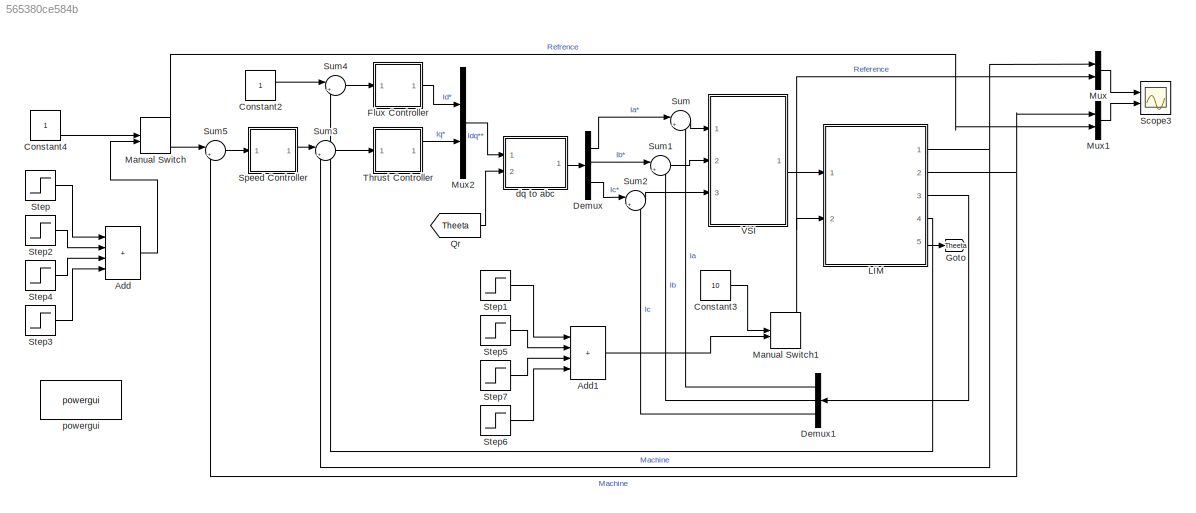
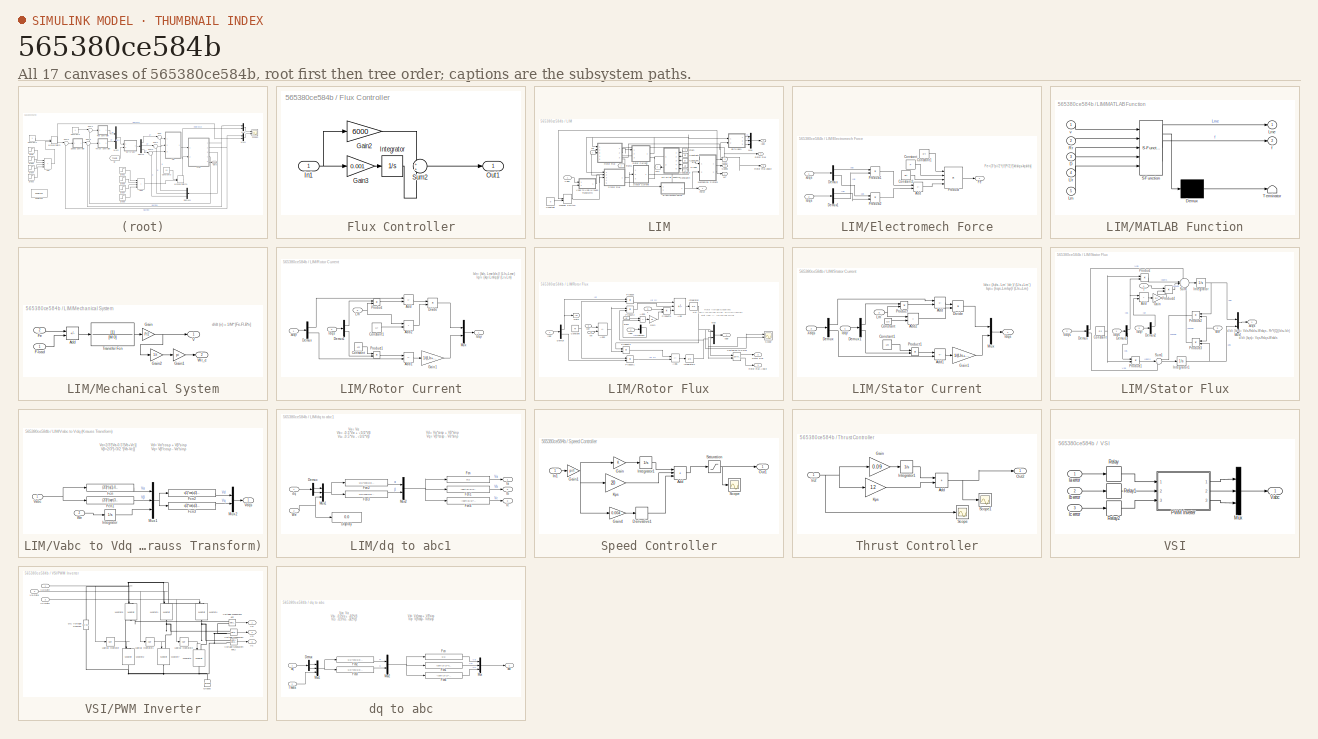
[diagram: thumbnail index - all 17 canvases of the model, root first then tree order]
MODEL slx_565380ce584b
KIND model
CONFIG AbsTol = auto
CONFIG EnableMultiTasking = off
CONFIG FixedStep = auto
CONFIG MaxStep = auto
CONFIG MinStep = auto
CONFIG RelTol = 1e-3
CONFIG SampleTimeConstraint = Unconstrained
CONFIG SolverName = VariableStepAuto
CONFIG StartTime = 0.0
CONFIG StopTime = 3
BLOCK [Sum] Add
  IconShape = rectangular
  Inputs = ++++
  Ports = [4, 1]
BLOCK [Sum] Add1
  IconShape = rectangular
  Inputs = ++++
  Ports = [4, 1]
BLOCK [Constant] Constant2
BLOCK [Constant] Constant3
  Value = 10
BLOCK [Constant] Constant4
BLOCK [Demux] Demux
  Outputs = 3
  Ports = [1, 3]
BLOCK [Demux] Demux1
  NameLocation = top
  Outputs = 3
  Ports = [1, 3]
BLOCK [SubSystem] Flux Controller
  Ports = [1, 1]
  RequestExecContextInheritance = off
BLOCK [Gain] Flux Controller/Gain2
  Gain = 6000
BLOCK [Gain] Flux Controller/Gain3
  Gain = 0.001
BLOCK [Inport] Flux Controller/In1
BLOCK [Integrator] Flux Controller/Integrator
  Ports = [1, 1]
BLOCK [Outport] Flux Controller/Out1
BLOCK [Sum] Flux Controller/Sum2
  Ports = [2, 1]
BLOCK [Goto] Goto
  GotoTag = Theeta
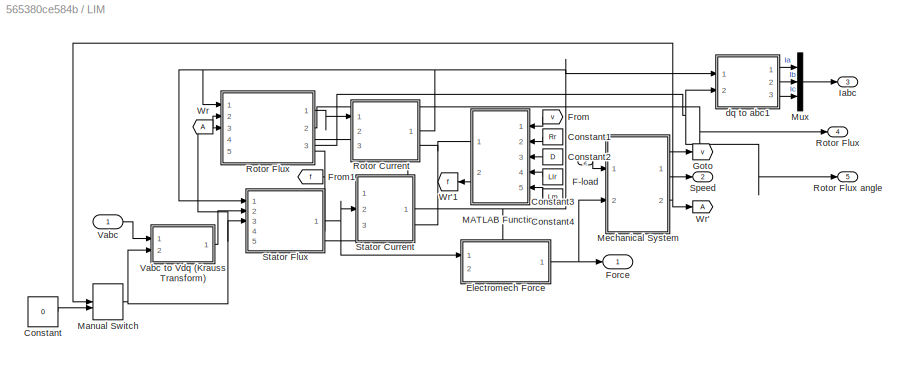
BLOCK [SubSystem] LIM
  Ports = [2, 5]
  RequestExecContextInheritance = off
BLOCK [Outport] LIM/ Iabc
  Port = 3
BLOCK [Outport] LIM/ Rotor Flux
  Port = 4
BLOCK [Outport] LIM/ Rotor Flux angle
  Port = 5
BLOCK [Outport] LIM/ Speed
  Port = 2
BLOCK [Constant] LIM/Constant
  Value = 0
BLOCK [Constant] LIM/Constant1
  NameLocation = top
  Value = Rr
BLOCK [Constant] LIM/Constant2
  NameLocation = top
  Value = D
BLOCK [Constant] LIM/Constant3
  NameLocation = top
  Value = Llr
BLOCK [Constant] LIM/Constant4
  NameLocation = top
  Value = Lm
BLOCK [SubSystem] LIM/Electromech Force
  PortSchema = {"entries":[{"content":{"sides":[{"content":{"connectorIds":["In1"]},"type":"ConnectorPlacement.EquallySpacedRectSide","uuid":"a4b29cca-9cb0-4324-9244-2049ffc93668"},{"content":{"connectorIds":["Out1"],"side":"RIGHT"},"type":"ConnectorPlacement.EquallySpacedRectSide","uuid":"b20ff3ac-d40e-4f59-bb91-f6f2c0c6ca63"},{"content":{"connectorIds":["In2"],"side":"TOP"},"type":"ConnectorPlacement.EquallySp...<+389ch>
  Ports = [2, 1]
  RequestExecContextInheritance = off
BLOCK [Sum] LIM/Electromech Force/Add
  IconShape = rectangular
  Inputs = +-
  Ports = [2, 1]
BLOCK [Constant] LIM/Electromech Force/Constant
  Value = P
BLOCK [Constant] LIM/Electromech Force/Constant1
  Value = 3/4
BLOCK [Constant] LIM/Electromech Force/Constant2
  Value = pi/t
BLOCK [Demux] LIM/Electromech Force/Demux
  Outputs = 2
  Ports = [1, 2]
BLOCK [Demux] LIM/Electromech Force/Demux1
  Outputs = 2
  Ports = [1, 2]
BLOCK [Outport] LIM/Electromech Force/Fe
BLOCK [Inport] LIM/Electromech Force/Idqs
  Port = 2
BLOCK [Product] LIM/Electromech Force/Product
  Inputs = 4
  Ports = [4, 1]
BLOCK [Product] LIM/Electromech Force/Product1
  Ports = [2, 1]
BLOCK [Product] LIM/Electromech Force/Product2
  Ports = [2, 1]
BLOCK [Inport] LIM/Electromech Force/λdqs
BLOCK [Inport] LIM/F-load
  Port = 2
BLOCK [Outport] LIM/Force 
BLOCK [From] LIM/From
  GotoTag = v
  NameLocation = top
BLOCK [From] LIM/From1
  GotoTag = f
BLOCK [Goto] LIM/Goto
  GotoTag = v
BLOCK [SubSystem] LIM/MATLAB Function
  ErrorFcn = Stateflow.Translate.translate
  NameLocation = top
  PermitHierarchicalResolution = ExplicitOnly
  Ports = [5, 2]
  RequestExecContextInheritance = off
  SFBlockType = MATLAB Function
  TreatAsAtomicUnit = on
BLOCK [Demux] LIM/MATLAB Function/ Demux 
  Outputs = 1
  Ports = [1, 1]
BLOCK [S-Function] LIM/MATLAB Function/ SFunction 
  EnableBusSupport = on
  FunctionName = sf_sfun
  PortCounts = [5 3]
  Ports = [5, 3]
  SFcnIsStateOwnerBlock = off
  SFunctionDeploymentMode = off
  Tag = Stateflow S-Function 2
BLOCK [Terminator] LIM/MATLAB Function/ Terminator 
BLOCK [Inport] LIM/MATLAB Function/D
  Port = 3
BLOCK [Inport] LIM/MATLAB Function/Llr
  Port = 4
BLOCK [Inport] LIM/MATLAB Function/Lm
  Port = 5
BLOCK [Outport] LIM/MATLAB Function/Lme
BLOCK [Inport] LIM/MATLAB Function/Rr
  Port = 2
BLOCK [Outport] LIM/MATLAB Function/f
  Port = 2
BLOCK [Inport] LIM/MATLAB Function/v
BLOCK [ManualSwitch] LIM/Manual Switch
  CurrentSetting = 0
BLOCK [SubSystem] LIM/Mechanical System
  Ports = [2, 2]
  RequestExecContextInheritance = off
BLOCK [Sum] LIM/Mechanical System/Add
  IconShape = rectangular
  Inputs = +-
  Ports = [2, 1]
BLOCK [Inport] LIM/Mechanical System/F-load
BLOCK [Inport] LIM/Mechanical System/Fe
  Port = 2
BLOCK [Gain] LIM/Mechanical System/Gain
  Gain = P/2
BLOCK [Gain] LIM/Mechanical System/Gain1
  Gain = pi
BLOCK [Gain] LIM/Mechanical System/Gain2
  Gain = 1/t
BLOCK [TransferFcn] LIM/Mechanical System/Transfer Fcn
  Denominator = [M 0]
BLOCK [Outport] LIM/Mechanical System/V
BLOCK [Outport] LIM/Mechanical System/Wr_e
  Port = 2
BLOCK [Mux] LIM/Mux
  DisplayOption = bar
  Inputs = 3
  Ports = [3, 1]
BLOCK [SubSystem] LIM/Rotor Current
  PortSchema = {"entries":[{"content":{"sides":[{"content":{"connectorIds":["In1","Out1"]},"type":"ConnectorPlacement.EquallySpacedRectSide","uuid":"b9a9f404-9b3b-4182-a50e-1bf7cef191e8"},{"content":{"connectorIds":["In2","In3"],"side":"RIGHT"},"type":"ConnectorPlacement.EquallySpacedRectSide","uuid":"68159d79-7975-4fd0-98a3-7e35432781a2"},{"content":{"connectorIds":[],"side":"TOP"},"type":"ConnectorPlacement.Eq...<+540ch>
  Ports = [3, 1]
  RequestExecContextInheritance = off
BLOCK [Sum] LIM/Rotor Current/Add
  IconShape = rectangular
  Inputs = +-
  Ports = [2, 1]
BLOCK [Sum] LIM/Rotor Current/Add1
  IconShape = rectangular
  Inputs = -+
  Ports = [2, 1]
BLOCK [Sum] LIM/Rotor Current/Add2
  IconShape = rectangular
  Ports = [2, 1]
BLOCK [Constant] LIM/Rotor Current/Constant
  Value = Lm
  VectorParams1D = off
BLOCK [Constant] LIM/Rotor Current/Constant1
  Value = Llr
BLOCK [Demux] LIM/Rotor Current/Demux
  Outputs = 2
  Ports = [1, 2]
BLOCK [Demux] LIM/Rotor Current/Demux1
  Outputs = 2
  Ports = [1, 2]
BLOCK [Product] LIM/Rotor Current/Divide
  Inputs = */
  Ports = [2, 1]
BLOCK [Gain] LIM/Rotor Current/Gain1
  Gain = 1/(Llr+Lm)
BLOCK [Outport] LIM/Rotor Current/Idqr
BLOCK [Inport] LIM/Rotor Current/Idqs
  Port = 2
BLOCK [Inport] LIM/Rotor Current/Lm'
  Port = 3
BLOCK [Mux] LIM/Rotor Current/Mux
  DisplayOption = bar
  Inputs = 2
  Ports = [2, 1]
BLOCK [Product] LIM/Rotor Current/Product
  Ports = [2, 1]
BLOCK [Product] LIM/Rotor Current/Product1
  Ports = [2, 1]
BLOCK [Inport] LIM/Rotor Current/λdqr
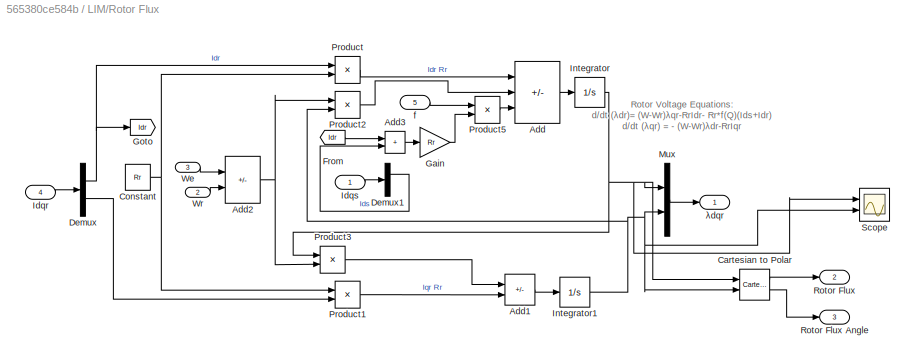
BLOCK [SubSystem] LIM/Rotor Flux
  PortSchema = {"entries":[{"content":{"sides":[{"content":{"connectorIds":["In1","In2","In3"]},"type":"ConnectorPlacement.EquallySpacedRectSide","uuid":"b9a9f404-9b3b-4182-a50e-1bf7cef191e8"},{"content":{"connectorIds":["Out1","Out2","Out3","In4","In5"],"side":"RIGHT"},"type":"ConnectorPlacement.EquallySpacedRectSide","uuid":"68159d79-7975-4fd0-98a3-7e35432781a2"},{"content":{"connectorIds":[],"side":"TOP"},"ty...<+422ch>
  Ports = [5, 3]
  RequestExecContextInheritance = off
BLOCK [Sum] LIM/Rotor Flux/Add
  IconShape = rectangular
  Inputs = -+-
  Ports = [3, 1]
BLOCK [Sum] LIM/Rotor Flux/Add1
  IconShape = rectangular
  Inputs = --
  Ports = [2, 1]
BLOCK [Sum] LIM/Rotor Flux/Add2
  IconShape = rectangular
  Inputs = +-
  Ports = [2, 1]
BLOCK [Sum] LIM/Rotor Flux/Add3
  IconShape = rectangular
  Ports = [2, 1]
BLOCK [Reference] LIM/Rotor Flux/Cartesian to Polar  REF=simulink_extras/Transformations/Cartesian to
Polar
  Ports = [2, 2]
  SourceBlock = simulink_extras/Transformations/Cartesian to\nPolar
  SourceProductBaseCode = SL
  SourceType = Cart2Polar
BLOCK [Constant] LIM/Rotor Flux/Constant
  Value = Rr
BLOCK [Demux] LIM/Rotor Flux/Demux
  Outputs = 2
  Ports = [1, 2]
BLOCK [Demux] LIM/Rotor Flux/Demux1
  Outputs = 2
  Ports = [1, 2]
BLOCK [From] LIM/Rotor Flux/From
  GotoTag = Idr
BLOCK [Gain] LIM/Rotor Flux/Gain
  Gain = Rr
BLOCK [Goto] LIM/Rotor Flux/Goto
  GotoTag = Idr
BLOCK [Inport] LIM/Rotor Flux/Idqr
  Port = 4
BLOCK [Inport] LIM/Rotor Flux/Idqs
BLOCK [Integrator] LIM/Rotor Flux/Integrator
  Ports = [1, 1]
BLOCK [Integrator] LIM/Rotor Flux/Integrator1
  Ports = [1, 1]
BLOCK [Mux] LIM/Rotor Flux/Mux
  DisplayOption = bar
  Inputs = 2
  Ports = [2, 1]
BLOCK [Product] LIM/Rotor Flux/Product
  Ports = [2, 1]
BLOCK [Product] LIM/Rotor Flux/Product1
  Ports = [2, 1]
BLOCK [Product] LIM/Rotor Flux/Product2
  Ports = [2, 1]
BLOCK [Product] LIM/Rotor Flux/Product3
  Ports = [2, 1]
BLOCK [Product] LIM/Rotor Flux/Product5
  Ports = [2, 1]
BLOCK [Outport] LIM/Rotor Flux/Rotor Flux
  Port = 2
BLOCK [Outport] LIM/Rotor Flux/Rotor Flux Angle
  Port = 3
BLOCK [Scope] LIM/Rotor Flux/Scope
  Floating = off
  NumInputPorts = 2
  Ports = [2]
  ScopeSpecificationString = Simulink.scopes.TimeScopeBlockCfg('CurrentConfiguration', extmgr.ConfigurationSet(extmgr.Configuration('Core','General UI',true),extmgr.Configuration('Core','Source UI',true),extmgr.Configuration('Sources','WiredSimulink',true,'DataLoggingVariableName','ScopeData1'),extmgr.Configuration('Visuals','Time Domain',true,'SerializedDisplays',{struct('MinYLimReal','-1.28219','MaxYLimReal','1.45674','YLab...<+2071ch>
BLOCK [Inport] LIM/Rotor Flux/We
  Port = 3
BLOCK [Inport] LIM/Rotor Flux/Wr
  Port = 2
BLOCK [Inport] LIM/Rotor Flux/f
  Port = 5
BLOCK [Outport] LIM/Rotor Flux/λdqr
BLOCK [SubSystem] LIM/Stator Current
  PortSchema = {"entries":[{"content":{"sides":[{"content":{"connectorIds":["In1","In2"]},"type":"ConnectorPlacement.EquallySpacedRectSide","uuid":"c6a8d684-b7d2-4173-9e8a-0a77b360fa3b"},{"content":{"connectorIds":["In3","Out1"],"side":"RIGHT"},"type":"ConnectorPlacement.EquallySpacedRectSide","uuid":"6b547613-238c-47a7-9a25-113e0bcf67e8"},{"content":{"connectorIds":[],"side":"TOP"},"type":"ConnectorPlacement.Eq...<+396ch>
  Ports = [3, 1]
  RequestExecContextInheritance = off
BLOCK [Sum] LIM/Stator Current/Add
  IconShape = rectangular
  Inputs = +-
  Ports = [2, 1]
BLOCK [Sum] LIM/Stator Current/Add1
  IconShape = rectangular
  Inputs = -+
  Ports = [2, 1]
BLOCK [Sum] LIM/Stator Current/Add2
  IconShape = rectangular
  Ports = [2, 1]
BLOCK [Constant] LIM/Stator Current/Constant
  Value = Lls
BLOCK [Constant] LIM/Stator Current/Constant1
  Value = Lm
  VectorParams1D = off
BLOCK [Demux] LIM/Stator Current/Demux
  Outputs = 2
  Ports = [1, 2]
BLOCK [Demux] LIM/Stator Current/Demux1
  Outputs = 2
  Ports = [1, 2]
BLOCK [Product] LIM/Stator Current/Divide
  Inputs = */
  Ports = [2, 1]
BLOCK [Gain] LIM/Stator Current/Gain1
  Gain = 1/(Lls+Lm)
BLOCK [Inport] LIM/Stator Current/Idqr
BLOCK [Outport] LIM/Stator Current/Idqs
BLOCK [Inport] LIM/Stator Current/Lm'
  Port = 3
BLOCK [Mux] LIM/Stator Current/Mux
  DisplayOption = bar
  Inputs = 2
  Ports = [2, 1]
BLOCK [Product] LIM/Stator Current/Product
  Ports = [2, 1]
BLOCK [Product] LIM/Stator Current/Product1
  Ports = [2, 1]
BLOCK [Inport] LIM/Stator Current/λdqs
  Port = 2
BLOCK [SubSystem] LIM/Stator Flux
  PortSchema = {"entries":[{"content":{"sides":[{"content":{"connectorIds":["In1","In2","In3"]},"type":"ConnectorPlacement.EquallySpacedRectSide","uuid":"a4b29cca-9cb0-4324-9244-2049ffc93668"},{"content":{"connectorIds":["In4","In5","Out1"],"side":"RIGHT"},"type":"ConnectorPlacement.EquallySpacedRectSide","uuid":"b20ff3ac-d40e-4f59-bb91-f6f2c0c6ca63"},{"content":{"connectorIds":[],"side":"TOP"},"type":"Connector...<+408ch>
  Ports = [5, 1]
  RequestExecContextInheritance = off
BLOCK [Sum] LIM/Stator Flux/Add
  IconShape = rectangular
  Ports = [2, 1]
BLOCK [Constant] LIM/Stator Flux/Constant
  Value = Rs
BLOCK [Demux] LIM/Stator Flux/Demux
  Outputs = 2
  Ports = [1, 2]
BLOCK [Demux] LIM/Stator Flux/Demux1
  Outputs = 2
  Ports = [1, 2]
BLOCK [Demux] LIM/Stator Flux/Demux2
  Outputs = 2
  Ports = [1, 2]
BLOCK [Gain] LIM/Stator Flux/Gain
  Gain = Rr
BLOCK [Inport] LIM/Stator Flux/Idqr
  Port = 5
BLOCK [Inport] LIM/Stator Flux/Idqs
BLOCK [Integrator] LIM/Stator Flux/Integrator
  Ports = [1, 1]
BLOCK [Integrator] LIM/Stator Flux/Integrator1
  Ports = [1, 1]
BLOCK [Mux] LIM/Stator Flux/Mux1
  DisplayOption = bar
  Inputs = 2
  Ports = [2, 1]
BLOCK [Product] LIM/Stator Flux/Product
  Ports = [2, 1]
BLOCK [Product] LIM/Stator Flux/Product1
  Ports = [2, 1]
BLOCK [Product] LIM/Stator Flux/Product2
  NameLocation = top
  Ports = [2, 1]
BLOCK [Product] LIM/Stator Flux/Product3
  NameLocation = top
  Ports = [2, 1]
BLOCK [Product] LIM/Stator Flux/Product4
  Ports = [2, 1]
BLOCK [Sum] LIM/Stator Flux/Sum
  Inputs = +--+
  Ports = [4, 1]
BLOCK [Sum] LIM/Stator Flux/Sum1
  Inputs = --+
  Ports = [3, 1]
BLOCK [Inport] LIM/Stator Flux/Vdqs
  Port = 2
BLOCK [Inport] LIM/Stator Flux/We
  NameLocation = top
  Port = 3
BLOCK [Inport] LIM/Stator Flux/f
  Port = 4
BLOCK [Outport] LIM/Stator Flux/λdqs
BLOCK [Inport] LIM/Vabc
BLOCK [SubSystem] LIM/Vabc to Vdq (Krauss Transform)
  Ports = [2, 1]
  RequestExecContextInheritance = off
BLOCK [Fcn] LIM/Vabc to Vdq (Krauss Transform)/Fcn
  Expr = (2/3)*(u(1)-0.5*u(2)-0.5*u(3))
BLOCK [Fcn] LIM/Vabc to Vdq (Krauss Transform)/Fcn1
  Expr = (2/3)*(sqrt(3)/2)*(u(2)-u(3))
BLOCK [Fcn] LIM/Vabc to Vdq (Krauss Transform)/Fcn2
  Expr = u(1)*cos(u(3))+u(2)*sin(u(3))
BLOCK [Fcn] LIM/Vabc to Vdq (Krauss Transform)/Fcn3
  Expr = u(2)*cos(u(3))-u(1)*sin(u(3))
BLOCK [Integrator] LIM/Vabc to Vdq (Krauss Transform)/Integrator
  Ports = [1, 1]
BLOCK [Mux] LIM/Vabc to Vdq (Krauss Transform)/Mux1
  DisplayOption = bar
  Inputs = 3
  Ports = [3, 1]
BLOCK [Mux] LIM/Vabc to Vdq (Krauss Transform)/Mux2
  DisplayOption = bar
  Inputs = 2
  Ports = [2, 1]
BLOCK [Inport] LIM/Vabc to Vdq (Krauss Transform)/Vabc
BLOCK [Outport] LIM/Vabc to Vdq (Krauss Transform)/Vdqs
BLOCK [Inport] LIM/Vabc to Vdq (Krauss Transform)/We
  Port = 2
BLOCK [From] LIM/Wr
BLOCK [Goto] LIM/Wr'
BLOCK [Goto] LIM/Wr'1
  GotoTag = f
  NameLocation = top
BLOCK [SubSystem] LIM/dq to abc1
  Ports = [2, 3]
  RequestExecContextInheritance = off
BLOCK [Demux] LIM/dq to abc1/Demux
  Outputs = 2
  Ports = [1, 2]
BLOCK [Display] LIM/dq to abc1/Display
  Decimation = 1
  Ports = [1]
BLOCK [Fcn] LIM/dq to abc1/Fcn
  Expr = u(1)
BLOCK [Fcn] LIM/dq to abc1/Fcn1
  Expr = (sqrt(3)/2)*u(2)-0.5*u(1)
BLOCK [Fcn] LIM/dq to abc1/Fcn2
  Expr = u(1)*cos(u(3))-u(2)*sin(u(3))
BLOCK [Fcn] LIM/dq to abc1/Fcn3
  Expr = u(2)*cos(u(3))+u(1)*sin(u(3))
BLOCK [Fcn] LIM/dq to abc1/Fcn4
  Expr = -(sqrt(3)/2)*u(2)-0.5*u(1)
BLOCK [Outport] LIM/dq to abc1/Ia
BLOCK [Outport] LIM/dq to abc1/Ib
  Port = 2
BLOCK [Outport] LIM/dq to abc1/Ic
  Port = 3
BLOCK [Mux] LIM/dq to abc1/Mux1
  DisplayOption = bar
  Inputs = 3
  Ports = [3, 1]
BLOCK [Mux] LIM/dq to abc1/Mux2
  DisplayOption = bar
  Inputs = 2
  Ports = [2, 1]
BLOCK [Inport] LIM/dq to abc1/We
  Port = 2
BLOCK [Inport] LIM/dq to abc1/dq
BLOCK [ManualSwitch] Manual Switch
BLOCK [ManualSwitch] Manual Switch1
BLOCK [Mux] Mux
  DisplayOption = bar
  Inputs = 2
  Ports = [2, 1]
BLOCK [Mux] Mux1
  DisplayOption = bar
  Inputs = 2
  Ports = [2, 1]
BLOCK [Mux] Mux2
  DisplayOption = bar
  Inputs = 2
  Ports = [2, 1]
BLOCK [From] Qr
  GotoTag = Theeta
BLOCK [Scope] Scope3
  Floating = off
  NumInputPorts = 2
  Ports = [2]
  ScopeSpecificationString = Simulink.scopes.TimeScopeBlockCfg('CurrentConfiguration', extmgr.ConfigurationSet(extmgr.Configuration('Core','General UI',true,'FigureColor',[0.8 0.8 0.8]),extmgr.Configuration('Core','Source UI',true),extmgr.Configuration('Sources','WiredSimulink',true,'DataLoggingVariableName','ScopeData1'),extmgr.Configuration('Visuals','Time Domain',true,'SerializedDisplays',{struct('MinYLimReal','-3039.09112...<+2596ch>
BLOCK [SubSystem] Speed Controller
  Ports = [1, 1]
  RequestExecContextInheritance = off
BLOCK [Sum] Speed Controller/Add
  IconShape = rectangular
  Inputs = +++
  Ports = [3, 1]
BLOCK [Derivative] Speed Controller/Derivative1
BLOCK [Gain] Speed Controller/Gain
BLOCK [Gain] Speed Controller/Gain1
  Gain = pi/t
BLOCK [Gain] Speed Controller/Gain4
  Gain = 0.004
BLOCK [Inport] Speed Controller/In1
BLOCK [Integrator] Speed Controller/Integrator1
  Ports = [1, 1]
BLOCK [Gain] Speed Controller/Kps
  Gain = 20
BLOCK [Outport] Speed Controller/Out1
BLOCK [Saturate] Speed Controller/Saturation
  LowerLimit = -50
  UpperLimit = 50
BLOCK [Scope] Speed Controller/Scope
  Floating = off
  NumInputPorts = 1
  Ports = [1]
  ScopeSpecificationString = Simulink.scopes.TimeScopeBlockCfg('CurrentConfiguration', extmgr.ConfigurationSet(extmgr.Configuration('Core','General UI',true),extmgr.Configuration('Core','Source UI',true),extmgr.Configuration('Sources','WiredSimulink',true,'DataLoggingVariableName','ScopeData1'),extmgr.Configuration('Visuals','Time Domain',true,'SerializedDisplays',{struct('MinYLimReal','-7.97224','MaxYLimReal','56.44136','YLa...<+1427ch>
BLOCK [Step] Step
  After = 1.6
  Before = 1
  SampleTime = 0
  Time = 0.5
BLOCK [Step] Step1
  After = 4
  SampleTime = 0
  Time = 0.5
BLOCK [Step] Step2
  After = -0.4
  SampleTime = 0
  Time = 0.9
BLOCK [Step] Step3
  After = 0.5
  SampleTime = 0
  Time = 2
BLOCK [Step] Step4
  After = -0.7
  SampleTime = 0
  Time = 1.5
BLOCK [Step] Step5
  After = 5
  SampleTime = 0
  Time = 0.9
BLOCK [Step] Step6
  After = 3
  SampleTime = 0
  Time = 2
BLOCK [Step] Step7
  After = -2
  SampleTime = 0
  Time = 1.5
BLOCK [Sum] Sum
  Inputs = |+-
  Ports = [2, 1]
BLOCK [Sum] Sum1
  Inputs = |+-
  Ports = [2, 1]
BLOCK [Sum] Sum2
  Inputs = |+-
  Ports = [2, 1]
BLOCK [Sum] Sum3
  Inputs = |+-
  Ports = [2, 1]
BLOCK [Sum] Sum4
  Inputs = |+-
  Ports = [2, 1]
BLOCK [Sum] Sum5
  Inputs = |+-
  Ports = [2, 1]
BLOCK [SubSystem] Thrust Controller
  Ports = [1, 1]
  RequestExecContextInheritance = off
BLOCK [Sum] Thrust Controller/Add
  IconShape = rectangular
  Ports = [2, 1]
BLOCK [Gain] Thrust Controller/Gain
  Gain = 0.09
BLOCK [Inport] Thrust Controller/In2
BLOCK [Integrator] Thrust Controller/Integrator1
  Ports = [1, 1]
BLOCK [Gain] Thrust Controller/Kps
  Gain = 12
BLOCK [Outport] Thrust Controller/Out2
BLOCK [Scope] Thrust Controller/Scope
  Floating = off
  NumInputPorts = 1
  Ports = [1]
  ScopeSpecificationString = Simulink.scopes.TimeScopeBlockCfg('CurrentConfiguration', extmgr.ConfigurationSet(extmgr.Configuration('Core','General UI',true),extmgr.Configuration('Core','Source UI',true),extmgr.Configuration('Sources','WiredSimulink',true,'DataLoggingVariableName','ScopeData1'),extmgr.Configuration('Visuals','Time Domain',true,'SerializedDisplays',{struct('MinYLimReal','-2.5144','MaxYLimReal','22.5016','YLabe...<+1392ch>
BLOCK [Scope] Thrust Controller/Scope1
  Floating = off
  NumInputPorts = 1
  Ports = [1]
  ScopeSpecificationString = Simulink.scopes.TimeScopeBlockCfg('CurrentConfiguration', extmgr.ConfigurationSet(extmgr.Configuration('Core','General UI',true),extmgr.Configuration('Core','Source UI',true),extmgr.Configuration('Sources','WiredSimulink',true,'DataLoggingVariableName','ScopeData2'),extmgr.Configuration('Visuals','Time Domain',true,'SerializedDisplays',{struct('MinYLimReal','-2.5144','MaxYLimReal','22.5016','YLabe...<+1392ch>
BLOCK [SubSystem] VSI
  Ports = [3, 1]
  RequestExecContextInheritance = off
BLOCK [Inport] VSI/Ia error
BLOCK [Inport] VSI/Ib error
  Port = 2
BLOCK [Inport] VSI/Ic error
  Port = 3
BLOCK [Mux] VSI/Mux
  DisplayOption = bar
  Inputs = 3
  Ports = [3, 1]
BLOCK [SubSystem] VSI/PWM Inverter
  Ports = [3, 3]
  RequestExecContextInheritance = off
BLOCK [Reference] VSI/PWM Inverter/DC Voltage Source1  REF=powerlib/Electrical
Sources/DC Voltage Source
  NameLocation = right
  Ports = [0, 0, 0, 0, 0, 1, 1]
  SourceBlock = powerlib/Electrical\nSources/DC Voltage Source
  SourceProductBaseCode = PS
  SourceType = DC Voltage Source
BLOCK [Reference] VSI/PWM Inverter/Ground  REF=powerlib/Elements/Ground
  NameLocation = right
  Ports = [0, 0, 0, 0, 0, 1]
  SourceBlock = powerlib/Elements/Ground
  SourceProductBaseCode = PS
  SourceType = Ground
BLOCK [Logic] VSI/PWM Inverter/Logical Operator
  AllPortsSameDT = off
  Operator = NOT
  OutDataTypeStr = boolean
  Ports = [1, 1]
BLOCK [Logic] VSI/PWM Inverter/Logical Operator1
  AllPortsSameDT = off
  Operator = NOT
  OutDataTypeStr = boolean
  Ports = [1, 1]
BLOCK [Logic] VSI/PWM Inverter/Logical Operator2
  AllPortsSameDT = off
  Operator = NOT
  OutDataTypeStr = boolean
  Ports = [1, 1]
BLOCK [Reference] VSI/PWM Inverter/Mosfet1  REF=powerlib/Power
Electronics/Mosfet
  NameLocation = left
  Ports = [1, 0, 0, 0, 0, 1, 1]
  SourceBlock = powerlib/Power\nElectronics/Mosfet
  SourceProductBaseCode = PS
  SourceType = Mosfet
BLOCK [Reference] VSI/PWM Inverter/Mosfet2  REF=powerlib/Power
Electronics/Mosfet
  NameLocation = left
  Ports = [1, 0, 0, 0, 0, 1, 1]
  SourceBlock = powerlib/Power\nElectronics/Mosfet
  SourceProductBaseCode = PS
  SourceType = Mosfet
BLOCK [Reference] VSI/PWM Inverter/Mosfet3  REF=powerlib/Power
Electronics/Mosfet
  NameLocation = left
  Ports = [1, 0, 0, 0, 0, 1, 1]
  SourceBlock = powerlib/Power\nElectronics/Mosfet
  SourceProductBaseCode = PS
  SourceType = Mosfet
BLOCK [Reference] VSI/PWM Inverter/Mosfet4  REF=powerlib/Power
Electronics/Mosfet
  NameLocation = left
  Ports = [1, 0, 0, 0, 0, 1, 1]
  SourceBlock = powerlib/Power\nElectronics/Mosfet
  SourceProductBaseCode = PS
  SourceType = Mosfet
BLOCK [Reference] VSI/PWM Inverter/Mosfet6  REF=powerlib/Power
Electronics/Mosfet
  NameLocation = left
  Ports = [1, 0, 0, 0, 0, 1, 1]
  SourceBlock = powerlib/Power\nElectronics/Mosfet
  SourceProductBaseCode = PS
  SourceType = Mosfet
BLOCK [Reference] VSI/PWM Inverter/Mosfet7  REF=powerlib/Power
Electronics/Mosfet
  NameLocation = left
  Ports = [1, 0, 0, 0, 0, 1, 1]
  SourceBlock = powerlib/Power\nElectronics/Mosfet
  SourceProductBaseCode = PS
  SourceType = Mosfet
BLOCK [Outport] VSI/PWM Inverter/Va
BLOCK [Inport] VSI/PWM Inverter/Va-Gate
BLOCK [Outport] VSI/PWM Inverter/Vb
  Port = 2
BLOCK [Inport] VSI/PWM Inverter/Vb-Gate
  Port = 2
BLOCK [Outport] VSI/PWM Inverter/Vc
  Port = 3
BLOCK [Inport] VSI/PWM Inverter/Vc-Gate
  Port = 3
BLOCK [Reference] VSI/PWM Inverter/Voltage Measurement  REF=powerlib/Measurements/Voltage Measurement
  Ports = [0, 1, 0, 0, 0, 2]
  SourceBlock = powerlib/Measurements/Voltage Measurement
  SourceProductBaseCode = PS
  SourceType = Voltage Measurement
  UserDataPersistent = on
BLOCK [Reference] VSI/PWM Inverter/Voltage Measurement1  REF=powerlib/Measurements/Voltage Measurement
  Ports = [0, 1, 0, 0, 0, 2]
  SourceBlock = powerlib/Measurements/Voltage Measurement
  SourceProductBaseCode = PS
  SourceType = Voltage Measurement
  UserDataPersistent = on
BLOCK [Reference] VSI/PWM Inverter/Voltage Measurement2  REF=powerlib/Measurements/Voltage Measurement
  Ports = [0, 1, 0, 0, 0, 2]
  SourceBlock = powerlib/Measurements/Voltage Measurement
  SourceProductBaseCode = PS
  SourceType = Voltage Measurement
  UserDataPersistent = on
BLOCK [Relay] VSI/Relay
  OffSwitchValue = -0.1
  OnSwitchValue = 0.1
BLOCK [Relay] VSI/Relay1
  OffSwitchValue = -0.1
  OnSwitchValue = 0.1
BLOCK [Relay] VSI/Relay2
  OffSwitchValue = -0.1
  OnSwitchValue = 0.1
BLOCK [Outport] VSI/Vabc
BLOCK [SubSystem] dq to abc
  Ports = [2, 1]
  RequestExecContextInheritance = off
BLOCK [Demux] dq to abc/Demux
  Outputs = 2
  Ports = [1, 2]
BLOCK [Fcn] dq to abc/Fcn
  Expr = u(1)
BLOCK [Fcn] dq to abc/Fcn1
  Expr = (sqrt(3)/2)*u(2)-0.5*u(1)
BLOCK [Fcn] dq to abc/Fcn2
  Expr = u(1)*cos(u(3))-u(2)*sin(u(3))
BLOCK [Fcn] dq to abc/Fcn3
  Expr = u(2)*cos(u(3))+u(1)*sin(u(3))
BLOCK [Fcn] dq to abc/Fcn4
  Expr = -(sqrt(3)/2)*u(2)-0.5*u(1)
BLOCK [Mux] dq to abc/Mux
  DisplayOption = bar
  Inputs = 3
  Ports = [3, 1]
BLOCK [Mux] dq to abc/Mux1
  DisplayOption = bar
  Inputs = 3
  Ports = [3, 1]
BLOCK [Mux] dq to abc/Mux2
  DisplayOption = bar
  Inputs = 2
  Ports = [2, 1]
BLOCK [Inport] dq to abc/Theeta
  Port = 2
BLOCK [Outport] dq to abc/abc
BLOCK [Inport] dq to abc/dq
BLOCK [Reference] powergui  REF=powerlib/powergui
  Ports = []
  Priority = 1
  SourceBlock = powerlib/powergui
  SourceProductBaseCode = PS
  SourceType = PSB option menu block
ANNOTATION LIM/Electromech Force: Fe=(3*pi/2*t)*(P/2)*[ λdsIqs-λqsIds]
ANNOTATION LIM/Mechanical System: d/dt (v) = 1/M* [Fe-Fl-B*v]
ANNOTATION LIM/Rotor Current: Idr= ( λdr- LmeIds )/ (Llr+Lme) Iqr= ( λqr-LmIqs )/ (Lr+Lm)
ANNOTATION LIM/Rotor Flux: Rotor Voltage Equations: d/dt ( λdr )= (W-Wr) λqr-RrIdr- Rr*f(Q)(Ids+Idr) d/dt (λqr) = - (W-Wr)λdr-RrIqr
ANNOTATION LIM/Stator Current: Ids= ( λds- Lm' Idr )/ (Lls+Lm') Iqs= ( λqs-LmIqr )/ (Lls+Lm)
ANNOTATION LIM/Stator Flux: d/dt (λds)= Vds-RsIds+Wsλqs - Rr*f(Q)(Ids+Idr) d/dt (λqs)= Vqs-RsIqs-Wsλds
ANNOTATION LIM/Vabc to Vdq (Krauss Transform): Vd= Vα*cos ρ + Vβ*sin ρ Vq= Vβ*cos ρ - Vα*sin ρ
ANNOTATION LIM/Vabc to Vdq (Krauss Transform): Vα=2/3*[Va-0.5*{Vb+Vc}] Vβ=2/3*[√3/2 *{Vb-Vc}]
ANNOTATION LIM/dq to abc1: Va= Vα Vb= -0.5*Vα + √3/2*Vβ Vc= -0.5*Vα - √3/2*Vβ
ANNOTATION LIM/dq to abc1: Vd= Vα*cos ρ + Vβ*sin ρ Vq= Vβ*cos ρ - Vα*sin ρ
ANNOTATION dq to abc: Va= Vα Vb= -0.5*Vα + √3/2*Vβ Vc= -0.5*Vα - √3/2*Vβ
ANNOTATION dq to abc: Vd= Vα*cos ρ + Vβ*sin ρ Vq= Vβ*cos ρ - Vα*sin ρ
LINE Add1:1 -> Manual Switch1:2
LINE Add:1 -> Manual Switch:2
LINE Constant2:1 -> Sum4:1
LINE Constant3:1 -> Manual Switch1:1
LINE Constant4:1 -> Manual Switch:1
LINE Demux1:1 -> Sum:2
LINE Demux1:2 -> Sum1:2
LINE Demux1:3 -> Sum2:2
LINE Demux:1 -> Sum:1
LINE Demux:2 -> Sum1:1
LINE Demux:3 -> Sum2:1
LINE Flux Controller/Gain2:1 -> Flux Controller/Sum2:1
LINE Flux Controller/Gain3:1 -> Flux Controller/Integrator:1
NET Flux Controller/In1:1 -> Flux Controller/Gain2:1, Flux Controller/Gain3:1
LINE Flux Controller/Integrator:1 -> Flux Controller/Sum2:2
LINE Flux Controller/Sum2:1 -> Flux Controller/Out1:1
LINE Flux Controller:1 -> Mux2:1
LINE LIM/Constant1:1 -> LIM/MATLAB Function:2
LINE LIM/Constant2:1 -> LIM/MATLAB Function:3
LINE LIM/Constant3:1 -> LIM/MATLAB Function:4
LINE LIM/Constant4:1 -> LIM/MATLAB Function:5
LINE LIM/Constant:1 -> LIM/Manual Switch:2
LINE LIM/Electromech Force/Add:1 -> LIM/Electromech Force/Product:4
LINE LIM/Electromech Force/Constant1:1 -> LIM/Electromech Force/Product:1
LINE LIM/Electromech Force/Constant2:1 -> LIM/Electromech Force/Product:3
LINE LIM/Electromech Force/Constant:1 -> LIM/Electromech Force/Product:2
LINE LIM/Electromech Force/Demux1:1 -> LIM/Electromech Force/Product2:2
LINE LIM/Electromech Force/Demux1:2 -> LIM/Electromech Force/Product1:2
LINE LIM/Electromech Force/Demux:1 -> LIM/Electromech Force/Product1:1
LINE LIM/Electromech Force/Demux:2 -> LIM/Electromech Force/Product2:1
LINE LIM/Electromech Force/Idqs:1 -> LIM/Electromech Force/Demux1:1
LINE LIM/Electromech Force/Product1:1 -> LIM/Electromech Force/Add:1
LINE LIM/Electromech Force/Product2:1 -> LIM/Electromech Force/Add:2
LINE LIM/Electromech Force/Product:1 -> LIM/Electromech Force/Fe:1
LINE LIM/Electromech Force/λdqs:1 -> LIM/Electromech Force/Demux:1
NET LIM/Electromech Force:1 -> LIM/Force :1, LIM/Mechanical System:2
LINE LIM/F-load:1 -> LIM/Mechanical System:1
NET LIM/From1:1 -> LIM/Rotor Flux:5, LIM/Stator Flux:4
LINE LIM/From:1 -> LIM/MATLAB Function:1
NET LIM/MATLAB Function:1 -> LIM/Rotor Current:3, LIM/Stator Current:3
LINE LIM/MATLAB Function:2 -> LIM/Wr'1:1
NET LIM/Manual Switch:1 -> LIM/Rotor Flux:3, LIM/Stator Flux:3, LIM/Vabc to Vdq (Krauss Transform):2
LINE LIM/Mechanical System/Add:1 -> LIM/Mechanical System/Transfer Fcn:1
LINE LIM/Mechanical System/F-load:1 -> LIM/Mechanical System/Add:2
LINE LIM/Mechanical System/Fe:1 -> LIM/Mechanical System/Add:1
LINE LIM/Mechanical System/Gain1:1 -> LIM/Mechanical System/Wr_e:1
LINE LIM/Mechanical System/Gain2:1 -> LIM/Mechanical System/Gain1:1
NET LIM/Mechanical System/Gain:1 -> LIM/Mechanical System/Gain2:1, LIM/Mechanical System/V:1
LINE LIM/Mechanical System/Transfer Fcn:1 -> LIM/Mechanical System/Gain:1
NET LIM/Mechanical System:1 -> LIM/ Speed:1, LIM/Goto:1
NET LIM/Mechanical System:2 -> LIM/Manual Switch:1, LIM/Wr':1
LINE LIM/Mux:1 -> LIM/ Iabc:1
LINE LIM/Rotor Current/Add1:1 -> LIM/Rotor Current/Gain1:1
LINE LIM/Rotor Current/Add2:1 -> LIM/Rotor Current/Divide:2
LINE LIM/Rotor Current/Add:1 -> LIM/Rotor Current/Divide:1
LINE LIM/Rotor Current/Constant1:1 -> LIM/Rotor Current/Add2:2
LINE LIM/Rotor Current/Constant:1 -> LIM/Rotor Current/Product1:1
LINE LIM/Rotor Current/Demux1:1 -> LIM/Rotor Current/Product:1
LINE LIM/Rotor Current/Demux1:2 -> LIM/Rotor Current/Product1:2
LINE LIM/Rotor Current/Demux:1 -> LIM/Rotor Current/Add:1
LINE LIM/Rotor Current/Demux:2 -> LIM/Rotor Current/Add1:2
LINE LIM/Rotor Current/Divide:1 -> LIM/Rotor Current/Mux:1
LINE LIM/Rotor Current/Gain1:1 -> LIM/Rotor Current/Mux:2
LINE LIM/Rotor Current/Idqs:1 -> LIM/Rotor Current/Demux1:1
NET LIM/Rotor Current/Lm':1 -> LIM/Rotor Current/Add2:1, LIM/Rotor Current/Product:2
LINE LIM/Rotor Current/Mux:1 -> LIM/Rotor Current/Idqr:1
LINE LIM/Rotor Current/Product1:1 -> LIM/Rotor Current/Add1:1
LINE LIM/Rotor Current/Product:1 -> LIM/Rotor Current/Add:2
LINE LIM/Rotor Current/λdqr:1 -> LIM/Rotor Current/Demux:1
NET LIM/Rotor Current:1 -> LIM/Rotor Flux:4, LIM/Stator Current:1, LIM/Stator Flux:5
LINE LIM/Rotor Flux/Add1:1 -> LIM/Rotor Flux/Integrator1:1
NET LIM/Rotor Flux/Add2:1 -> LIM/Rotor Flux/Product2:1, LIM/Rotor Flux/Product3:2
LINE LIM/Rotor Flux/Add3:1 -> LIM/Rotor Flux/Gain:1
LINE LIM/Rotor Flux/Add:1 -> LIM/Rotor Flux/Integrator:1
LINE LIM/Rotor Flux/Cartesian to Polar:1 -> LIM/Rotor Flux/Rotor Flux:1
LINE LIM/Rotor Flux/Cartesian to Polar:2 -> LIM/Rotor Flux/Rotor Flux Angle:1
NET LIM/Rotor Flux/Constant:1 -> LIM/Rotor Flux/Product1:1, LIM/Rotor Flux/Product:2
LINE LIM/Rotor Flux/Demux1:1 -> LIM/Rotor Flux/Add3:2
NET LIM/Rotor Flux/Demux:1 -> LIM/Rotor Flux/Goto:1, LIM/Rotor Flux/Product:1
LINE LIM/Rotor Flux/Demux:2 -> LIM/Rotor Flux/Product1:2
LINE LIM/Rotor Flux/From:1 -> LIM/Rotor Flux/Add3:1
LINE LIM/Rotor Flux/Gain:1 -> LIM/Rotor Flux/Product5:2
LINE LIM/Rotor Flux/Idqr:1 -> LIM/Rotor Flux/Demux:1
LINE LIM/Rotor Flux/Idqs:1 -> LIM/Rotor Flux/Demux1:1
NET LIM/Rotor Flux/Integrator1:1 -> LIM/Rotor Flux/Cartesian to Polar:2, LIM/Rotor Flux/Mux:2, LIM/Rotor Flux/Product2:2, LIM/Rotor Flux/Scope:2
NET LIM/Rotor Flux/Integrator:1 -> LIM/Rotor Flux/Cartesian to Polar:1, LIM/Rotor Flux/Mux:1, LIM/Rotor Flux/Product3:1, LIM/Rotor Flux/Scope:1
LINE LIM/Rotor Flux/Mux:1 -> LIM/Rotor Flux/λdqr:1
LINE LIM/Rotor Flux/Product1:1 -> LIM/Rotor Flux/Add1:2
LINE LIM/Rotor Flux/Product2:1 -> LIM/Rotor Flux/Add:2
LINE LIM/Rotor Flux/Product3:1 -> LIM/Rotor Flux/Add1:1
LINE LIM/Rotor Flux/Product5:1 -> LIM/Rotor Flux/Add:3
LINE LIM/Rotor Flux/Product:1 -> LIM/Rotor Flux/Add:1
LINE LIM/Rotor Flux/We:1 -> LIM/Rotor Flux/Add2:1
LINE LIM/Rotor Flux/Wr:1 -> LIM/Rotor Flux/Add2:2
LINE LIM/Rotor Flux/f:1 -> LIM/Rotor Flux/Product5:1
LINE LIM/Rotor Flux:1 -> LIM/Rotor Current:1
LINE LIM/Rotor Flux:2 -> LIM/ Rotor Flux:1
NET LIM/Rotor Flux:3 -> LIM/ Rotor Flux angle:1, LIM/dq to abc1:2
LINE LIM/Stator Current/Add1:1 -> LIM/Stator Current/Gain1:1
LINE LIM/Stator Current/Add2:1 -> LIM/Stator Current/Divide:2
LINE LIM/Stator Current/Add:1 -> LIM/Stator Current/Divide:1
LINE LIM/Stator Current/Constant1:1 -> LIM/Stator Current/Product1:1
LINE LIM/Stator Current/Constant:1 -> LIM/Stator Current/Add2:2
LINE LIM/Stator Current/Demux1:1 -> LIM/Stator Current/Product:1
LINE LIM/Stator Current/Demux1:2 -> LIM/Stator Current/Product1:2
LINE LIM/Stator Current/Demux:1 -> LIM/Stator Current/Add:1
LINE LIM/Stator Current/Demux:2 -> LIM/Stator Current/Add1:2
LINE LIM/Stator Current/Divide:1 -> LIM/Stator Current/Mux:1
LINE LIM/Stator Current/Gain1:1 -> LIM/Stator Current/Mux:2
LINE LIM/Stator Current/Idqr:1 -> LIM/Stator Current/Demux1:1
NET LIM/Stator Current/Lm':1 -> LIM/Stator Current/Add2:1, LIM/Stator Current/Product:2
LINE LIM/Stator Current/Mux:1 -> LIM/Stator Current/Idqs:1
LINE LIM/Stator Current/Product1:1 -> LIM/Stator Current/Add1:1
LINE LIM/Stator Current/Product:1 -> LIM/Stator Current/Add:2
LINE LIM/Stator Current/λdqs:1 -> LIM/Stator Current/Demux:1
NET LIM/Stator Current:1 -> LIM/Electromech Force:2, LIM/Rotor Current:2, LIM/Rotor Flux:1, LIM/Stator Flux:1, LIM/dq to abc1:1
LINE LIM/Stator Flux/Add:1 -> LIM/Stator Flux/Gain:1
NET LIM/Stator Flux/Constant:1 -> LIM/Stator Flux/Product1:2, LIM/Stator Flux/Product:1
NET LIM/Stator Flux/Demux1:1 -> LIM/Stator Flux/Add:1, LIM/Stator Flux/Product:2
LINE LIM/Stator Flux/Demux1:2 -> LIM/Stator Flux/Product1:1
LINE LIM/Stator Flux/Demux2:1 -> LIM/Stator Flux/Add:2
LINE LIM/Stator Flux/Demux:1 -> LIM/Stator Flux/Sum:1
LINE LIM/Stator Flux/Demux:2 -> LIM/Stator Flux/Sum1:3
LINE LIM/Stator Flux/Gain:1 -> LIM/Stator Flux/Product4:2
LINE LIM/Stator Flux/Idqr:1 -> LIM/Stator Flux/Demux2:1
LINE LIM/Stator Flux/Idqs:1 -> LIM/Stator Flux/Demux1:1
NET LIM/Stator Flux/Integrator1:1 -> LIM/Stator Flux/Mux1:2, LIM/Stator Flux/Product3:2
NET LIM/Stator Flux/Integrator:1 -> LIM/Stator Flux/Mux1:1, LIM/Stator Flux/Product2:1
LINE LIM/Stator Flux/Mux1:1 -> LIM/Stator Flux/λdqs:1
LINE LIM/Stator Flux/Product1:1 -> LIM/Stator Flux/Sum1:2
LINE LIM/Stator Flux/Product2:1 -> LIM/Stator Flux/Sum1:1
LINE LIM/Stator Flux/Product3:1 -> LIM/Stator Flux/Sum:4
LINE LIM/Stator Flux/Product4:1 -> LIM/Stator Flux/Sum:3
LINE LIM/Stator Flux/Product:1 -> LIM/Stator Flux/Sum:2
LINE LIM/Stator Flux/Sum1:1 -> LIM/Stator Flux/Integrator1:1
LINE LIM/Stator Flux/Sum:1 -> LIM/Stator Flux/Integrator:1
LINE LIM/Stator Flux/Vdqs:1 -> LIM/Stator Flux/Demux:1
NET LIM/Stator Flux/We:1 -> LIM/Stator Flux/Product2:2, LIM/Stator Flux/Product3:1
LINE LIM/Stator Flux/f:1 -> LIM/Stator Flux/Product4:1
NET LIM/Stator Flux:1 -> LIM/Electromech Force:1, LIM/Stator Current:2
LINE LIM/Vabc to Vdq (Krauss Transform)/Fcn1:1 -> LIM/Vabc to Vdq (Krauss Transform)/Mux1:2
LINE LIM/Vabc to Vdq (Krauss Transform)/Fcn2:1 -> LIM/Vabc to Vdq (Krauss Transform)/Mux2:1
LINE LIM/Vabc to Vdq (Krauss Transform)/Fcn3:1 -> LIM/Vabc to Vdq (Krauss Transform)/Mux2:2
LINE LIM/Vabc to Vdq (Krauss Transform)/Fcn:1 -> LIM/Vabc to Vdq (Krauss Transform)/Mux1:1
LINE LIM/Vabc to Vdq (Krauss Transform)/Integrator:1 -> LIM/Vabc to Vdq (Krauss Transform)/Mux1:3
NET LIM/Vabc to Vdq (Krauss Transform)/Mux1:1 -> LIM/Vabc to Vdq (Krauss Transform)/Fcn2:1, LIM/Vabc to Vdq (Krauss Transform)/Fcn3:1
LINE LIM/Vabc to Vdq (Krauss Transform)/Mux2:1 -> LIM/Vabc to Vdq (Krauss Transform)/Vdqs:1
NET LIM/Vabc to Vdq (Krauss Transform)/Vabc:1 -> LIM/Vabc to Vdq (Krauss Transform)/Fcn1:1, LIM/Vabc to Vdq (Krauss Transform)/Fcn:1
LINE LIM/Vabc to Vdq (Krauss Transform)/We:1 -> LIM/Vabc to Vdq (Krauss Transform)/Integrator:1
LINE LIM/Vabc to Vdq (Krauss Transform):1 -> LIM/Stator Flux:2
LINE LIM/Vabc:1 -> LIM/Vabc to Vdq (Krauss Transform):1
LINE LIM/Wr:1 -> LIM/Rotor Flux:2
LINE LIM/dq to abc1/Demux:1 -> LIM/dq to abc1/Mux1:1
LINE LIM/dq to abc1/Demux:2 -> LIM/dq to abc1/Mux1:2
LINE LIM/dq to abc1/Fcn1:1 -> LIM/dq to abc1/Ib:1
LINE LIM/dq to abc1/Fcn2:1 -> LIM/dq to abc1/Mux2:1
LINE LIM/dq to abc1/Fcn3:1 -> LIM/dq to abc1/Mux2:2
LINE LIM/dq to abc1/Fcn4:1 -> LIM/dq to abc1/Ic:1
LINE LIM/dq to abc1/Fcn:1 -> LIM/dq to abc1/Ia:1
NET LIM/dq to abc1/Mux1:1 -> LIM/dq to abc1/Fcn2:1, LIM/dq to abc1/Fcn3:1
NET LIM/dq to abc1/Mux2:1 -> LIM/dq to abc1/Fcn1:1, LIM/dq to abc1/Fcn4:1, LIM/dq to abc1/Fcn:1
NET LIM/dq to abc1/We:1 -> LIM/dq to abc1/Display:1, LIM/dq to abc1/Mux1:3
LINE LIM/dq to abc1/dq:1 -> LIM/dq to abc1/Demux:1
LINE LIM/dq to abc1:1 -> LIM/Mux:1
LINE LIM/dq to abc1:2 -> LIM/Mux:2
LINE LIM/dq to abc1:3 -> LIM/Mux:3
NET LIM:1 -> Mux:1, Sum3:2
NET LIM:2 -> Mux1:1, Sum5:2
LINE LIM:3 -> Demux1:1
LINE LIM:4 -> Sum4:2
LINE LIM:5 -> Goto:1
NET Manual Switch1:1 -> LIM:2, Mux:2
NET Manual Switch:1 -> Mux1:2, Sum5:1
LINE Mux1:1 -> Scope3:2
LINE Mux2:1 -> dq to abc:1
LINE Mux:1 -> Scope3:1
LINE Qr:1 -> dq to abc:2
LINE Speed Controller/Add:1 -> Speed Controller/Saturation:1
LINE Speed Controller/Derivative1:1 -> Speed Controller/Add:3
NET Speed Controller/Gain1:1 -> Speed Controller/Gain4:1, Speed Controller/Gain:1, Speed Controller/Kps:1
LINE Speed Controller/Gain4:1 -> Speed Controller/Derivative1:1
LINE Speed Controller/Gain:1 -> Speed Controller/Integrator1:1
LINE Speed Controller/In1:1 -> Speed Controller/Gain1:1
LINE Speed Controller/Integrator1:1 -> Speed Controller/Add:1
LINE Speed Controller/Kps:1 -> Speed Controller/Add:2
NET Speed Controller/Saturation:1 -> Speed Controller/Out1:1, Speed Controller/Scope:1
LINE Speed Controller:1 -> Sum3:1
LINE Step1:1 -> Add1:1
LINE Step2:1 -> Add:2
LINE Step3:1 -> Add:4
LINE Step4:1 -> Add:3
LINE Step5:1 -> Add1:2
LINE Step6:1 -> Add1:4
LINE Step7:1 -> Add1:3
LINE Step:1 -> Add:1
LINE Sum1:1 -> VSI:2
LINE Sum2:1 -> VSI:3
LINE Sum3:1 -> Thrust Controller:1
LINE Sum4:1 -> Flux Controller:1
LINE Sum5:1 -> Speed Controller:1
LINE Sum:1 -> VSI:1
NET Thrust Controller/Add:1 -> Thrust Controller/Out2:1, Thrust Controller/Scope1:1
LINE Thrust Controller/Gain:1 -> Thrust Controller/Integrator1:1
NET Thrust Controller/In2:1 -> Thrust Controller/Gain:1, Thrust Controller/Kps:1, Thrust Controller/Scope:1
LINE Thrust Controller/Integrator1:1 -> Thrust Controller/Add:1
LINE Thrust Controller/Kps:1 -> Thrust Controller/Add:2
LINE Thrust Controller:1 -> Mux2:2
LINE VSI/Ia error:1 -> VSI/Relay:1
LINE VSI/Ib error:1 -> VSI/Relay1:1
LINE VSI/Ic error:1 -> VSI/Relay2:1
LINE VSI/Mux:1 -> VSI/Vabc:1
LINE VSI/PWM Inverter/Logical Operator1:1 -> VSI/PWM Inverter/Mosfet7:1
LINE VSI/PWM Inverter/Logical Operator2:1 -> VSI/PWM Inverter/Mosfet3:1
LINE VSI/PWM Inverter/Logical Operator:1 -> VSI/PWM Inverter/Mosfet2:1
NET VSI/PWM Inverter/Va-Gate:1 -> VSI/PWM Inverter/Logical Operator:1, VSI/PWM Inverter/Mosfet6:1
NET VSI/PWM Inverter/Vb-Gate:1 -> VSI/PWM Inverter/Logical Operator1:1, VSI/PWM Inverter/Mosfet1:1
NET VSI/PWM Inverter/Vc-Gate:1 -> VSI/PWM Inverter/Logical Operator2:1, VSI/PWM Inverter/Mosfet4:1
LINE VSI/PWM Inverter/Voltage Measurement1:1 -> VSI/PWM Inverter/Vb:1
LINE VSI/PWM Inverter/Voltage Measurement2:1 -> VSI/PWM Inverter/Vc:1
LINE VSI/PWM Inverter/Voltage Measurement:1 -> VSI/PWM Inverter/Va:1
LINE VSI/PWM Inverter:1 -> VSI/Mux:1
LINE VSI/PWM Inverter:2 -> VSI/Mux:2
LINE VSI/PWM Inverter:3 -> VSI/Mux:3
LINE VSI/Relay1:1 -> VSI/PWM Inverter:2
LINE VSI/Relay2:1 -> VSI/PWM Inverter:3
LINE VSI/Relay:1 -> VSI/PWM Inverter:1
LINE VSI:1 -> LIM:1
LINE dq to abc/Demux:1 -> dq to abc/Mux1:1
LINE dq to abc/Demux:2 -> dq to abc/Mux1:2
LINE dq to abc/Fcn1:1 -> dq to abc/Mux:2
LINE dq to abc/Fcn2:1 -> dq to abc/Mux2:1
LINE dq to abc/Fcn3:1 -> dq to abc/Mux2:2
LINE dq to abc/Fcn4:1 -> dq to abc/Mux:3
LINE dq to abc/Fcn:1 -> dq to abc/Mux:1
NET dq to abc/Mux1:1 -> dq to abc/Fcn2:1, dq to abc/Fcn3:1
NET dq to abc/Mux2:1 -> dq to abc/Fcn1:1, dq to abc/Fcn4:1, dq to abc/Fcn:1
LINE dq to abc/Mux:1 -> dq to abc/abc:1
LINE dq to abc/Theeta:1 -> dq to abc/Mux1:3
LINE dq to abc/dq:1 -> dq to abc/Demux:1
LINE dq to abc:1 -> Demux:1
PNET net1: VSI/PWM Inverter/DC Voltage Source1:LConn1 -- VSI/PWM Inverter/Ground:LConn1 -- VSI/PWM Inverter/Mosfet2:RConn1 -- VSI/PWM Inverter/Mosfet3:RConn1 -- VSI/PWM Inverter/Mosfet7:RConn1 -- VSI/PWM Inverter/Voltage Measurement1:LConn2 -- VSI/PWM Inverter/Voltage Measurement2:LConn2 -- VSI/PWM Inverter/Voltage Measurement:LConn2
PNET net2: VSI/PWM Inverter/DC Voltage Source1:RConn1 -- VSI/PWM Inverter/Mosfet1:LConn1 -- VSI/PWM Inverter/Mosfet4:LConn1 -- VSI/PWM Inverter/Mosfet6:LConn1
PNET net3: VSI/PWM Inverter/Mosfet1:RConn1 -- VSI/PWM Inverter/Mosfet7:LConn1 -- VSI/PWM Inverter/Voltage Measurement1:LConn1
PNET net4: VSI/PWM Inverter/Mosfet2:LConn1 -- VSI/PWM Inverter/Mosfet6:RConn1 -- VSI/PWM Inverter/Voltage Measurement:LConn1
PNET net5: VSI/PWM Inverter/Mosfet3:LConn1 -- VSI/PWM Inverter/Mosfet4:RConn1 -- VSI/PWM Inverter/Voltage Measurement2:LConn1
note: NET lines group one-source signal fan-out (src -> all destinations, sorted); 1:1 wires keep LINE; PNET lines group multi-terminal physical nets as a canonical sorted terminal list (undirected conserving connections); 2-terminal nets keep the pairwise PLINE form
CHART LIM/MATLAB Function states=1 transitions=1
  STATE_LABEL 'eML_blk_kernel()'
  STATE_LABEL 'SCRIPT:\nfunction [Lme,f]= fcn(v, Rr,D,Llr,Lm)\nQ=abs((D*Rr)/(Llr*v));\nf=(1-(exp(-Q)))/Q;\nLme = Lm*(1-f)\n'
CHART  states=0 transitions=0
